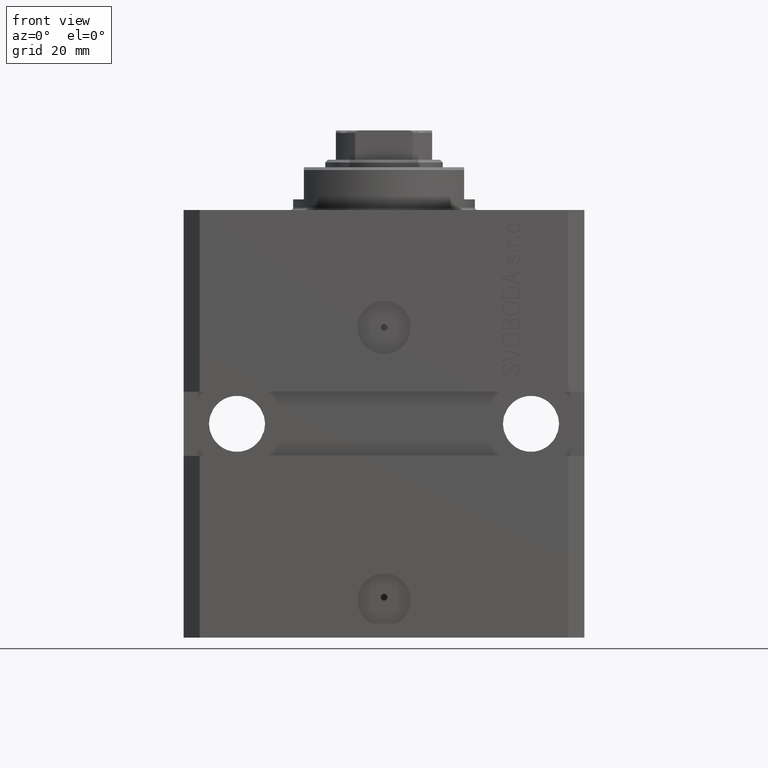
[diagram: clean part render]
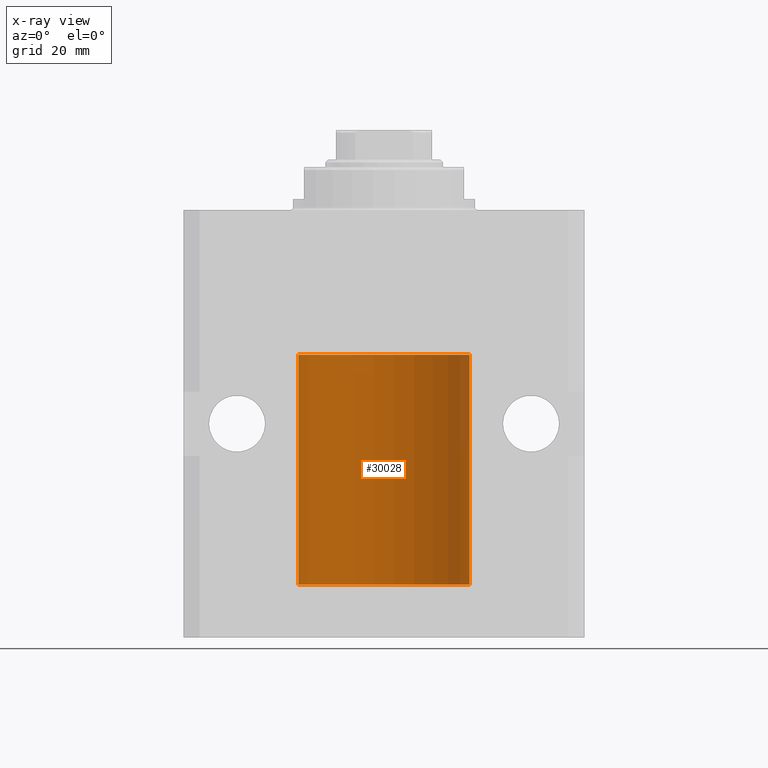
[diagram: x-ray — body ghosted, one internal face saturated and labeled with its STEP entity id]
A machine part, front view, then the same camera in x-ray: the body is ghosted and one INTERNAL B-rep face — a face not visible from any outside direction — is saturated and labeled: STEP entity #30028.
In plain terms, the highlighted cylindrical surface (partial cylindrical patch) has radius 16 mm, axis along (0, 0, 1).
Its self-contained STEP definition (entity closure, byte-faithful):
#389 = CARTESIAN_POINT ( 'NONE',  ( 0.000000000000000000, 0.000000000000000000, -70.09999999999999432 ) ) ;
#1057 = LINE ( 'NONE', #7438, #21315 ) ;
#3191 = DIRECTION ( 'NONE',  ( -0.000000000000000000, -0.000000000000000000, 1.000000000000000000 ) ) ;
#4310 = VERTEX_POINT ( 'NONE', #15127 ) ;
#4674 = ORIENTED_EDGE ( 'NONE', *, *, #9559, .T. ) ;
#7143 = AXIS2_PLACEMENT_3D ( 'NONE', #389, #15053, #43926 ) ;
#7438 = CARTESIAN_POINT ( 'NONE',  ( -16.00000000000000000, 1.959434878635765131E-15, -70.09999999999999432 ) ) ;
#7531 = CARTESIAN_POINT ( 'NONE',  ( -15.99070426498502862, 0.5462220647145645813, -68.31460064614141459 ) ) ;
#9437 = VERTEX_POINT ( 'NONE', #10918 ) ;
#9559 = EDGE_CURVE ( 'NONE', #4310, #31137, #42383, .T. ) ;
#10155 = CARTESIAN_POINT ( 'NONE',  ( -15.99548640841682712, 0.3843705577988820732, -67.50046628527007897 ) ) ;
#10385 = CARTESIAN_POINT ( 'NONE',  ( -15.98779057735153586, 0.6249419637998054888, -67.83670145863507628 ) ) ;
#10491 = ORIENTED_EDGE ( 'NONE', *, *, #39369, .F. ) ;
#10918 = CARTESIAN_POINT ( 'NONE',  ( -16.00000000000013145, 3.685127046438747128E-13, -68.62500000000343903 ) ) ;
#11458 = EDGE_CURVE ( 'NONE', #22991, #31137, #1057, .T. ) ;
#11921 = DIRECTION ( 'NONE',  ( -0.000000000000000000, -0.000000000000000000, 1.000000000000000000 ) ) ;
#12247 = DIRECTION ( 'NONE',  ( -0.000000000000000000, -0.000000000000000000, 1.000000000000000000 ) ) ;
#12690 = CARTESIAN_POINT ( 'NONE',  ( -16.00000000000000000, 1.959434878635765131E-15, -70.09999999999999432 ) ) ;
#13370 = CARTESIAN_POINT ( 'NONE',  ( 0.000000000000000000, 0.000000000000000000, -70.09999999999999432 ) ) ;
#13711 = CARTESIAN_POINT ( 'NONE',  ( -15.99707730059171240, 0.3150375992092334654, -67.45402333202571299 ) ) ;
#14074 = CYLINDRICAL_SURFACE ( 'NONE', #19610, 16.00000000000000000 ) ;
#14539 = ORIENTED_EDGE ( 'NONE', *, *, #19742, .T. ) ;
#15053 = DIRECTION ( 'NONE',  ( 0.000000000000000000, 0.000000000000000000, 1.000000000000000000 ) ) ;
#15127 = CARTESIAN_POINT ( 'NONE',  ( 16.00000000000000000, 0.000000000000000000, -27.10000000000000142 ) ) ;
#15561 = CARTESIAN_POINT ( 'NONE',  ( -16.00000000000000000, 1.959434878635765131E-15, -70.09999999999999432 ) ) ;
#17622 = DIRECTION ( 'NONE',  ( 1.000000000000000000, 0.000000000000000000, 0.000000000000000000 ) ) ;
#18194 = CARTESIAN_POINT ( 'NONE',  ( -15.99711699979840951, 0.3253759916140645525, -68.55856151623176231 ) ) ;
#19610 = AXIS2_PLACEMENT_3D ( 'NONE', #13370, #3191, #17622 ) ;
#19742 = EDGE_CURVE ( 'NONE', #22991, #9437, #27614, .T. ) ;
#20340 = EDGE_CURVE ( 'NONE', #31022, #35913, #43440, .T. ) ;
#20944 = ORIENTED_EDGE ( 'NONE', *, *, #20340, .F. ) ;
#21315 = VECTOR ( 'NONE', #11921, 1000.000000000000000 ) ;
#21609 = CARTESIAN_POINT ( 'NONE',  ( -16.00000000000000000, 1.959434878635765131E-15, -27.10000000000000142 ) ) ;
#22049 = VECTOR ( 'NONE', #12247, 1000.000000000000000 ) ;
#22991 = VERTEX_POINT ( 'NONE', #27138 ) ;
#23236 = VECTOR ( 'NONE', #45557, 1000.000000000000000 ) ;
#25307 = CARTESIAN_POINT ( 'NONE',  ( -15.99934216141748244, 0.1636497843296345067, -67.39126528029308361 ) ) ;
#26095 = EDGE_CURVE ( 'NONE', #31022, #4310, #27324, .T. ) ;
#26598 = EDGE_LOOP ( 'NONE', ( #10491, #20944, #42084, #4674, #28820, #14539 ) ) ;
#27138 = CARTESIAN_POINT ( 'NONE',  ( -16.00000000000000000, -9.346608026143465119E-15, -67.37500000000000000 ) ) ;
#27324 = LINE ( 'NONE', #34901, #23236 ) ;
#27614 = B_SPLINE_CURVE_WITH_KNOTS ( 'NONE', 3,
 ( #46164, #35971, #25307, #13711, #10155, #46627, #10385, #28164, #35504, #7531, #42586, #18194, #32651, #39049 ),
 .UNSPECIFIED., .F., .F.,
 ( 4, 2, 2, 2, 2, 2, 4 ),
 ( 9.902737362640428303E-19, 0.0002442776652680895785, 0.0004885553305361781812, 0.0009771106610723552782, 0.001221388326340464752, 0.001465665991608574008, 0.001954221322144763465 ),
 .UNSPECIFIED. ) ;
#28164 = CARTESIAN_POINT ( 'NONE',  ( -15.98778717651346426, 0.6250289588122136530, -68.08131585687053189 ) ) ;
#28820 = ORIENTED_EDGE ( 'NONE', *, *, #11458, .F. ) ;
#29550 = AXIS2_PLACEMENT_3D ( 'NONE', #36958, #44518, #37429 ) ;
#30028 = ADVANCED_FACE ( 'NONE', ( #35641 ), #14074, .F. ) ;
#31022 = VERTEX_POINT ( 'NONE', #41506 ) ;
#31137 = VERTEX_POINT ( 'NONE', #21609 ) ;
#32651 = CARTESIAN_POINT ( 'NONE',  ( -15.99999999999998934, 0.1631714642025807183, -68.62499999999984368 ) ) ;
#34901 = CARTESIAN_POINT ( 'NONE',  ( 16.00000000000000000, 0.000000000000000000, -70.09999999999999432 ) ) ;
#35504 = CARTESIAN_POINT ( 'NONE',  ( -15.98844267028591126, 0.6088369347963314970, -68.16324735024328163 ) ) ;
#35641 = FACE_OUTER_BOUND ( 'NONE', #26598, .T. ) ;
#35913 = VERTEX_POINT ( 'NONE', #12690 ) ;
#35971 = CARTESIAN_POINT ( 'NONE',  ( -16.00000000000000711, 0.08259886010189028405, -67.37500000000001421 ) ) ;
#36958 = CARTESIAN_POINT ( 'NONE',  ( 0.000000000000000000, 0.000000000000000000, -27.10000000000000142 ) ) ;
#37116 = LINE ( 'NONE', #15561, #22049 ) ;
#37429 = DIRECTION ( 'NONE',  ( 1.000000000000000000, 0.000000000000000000, 0.000000000000000000 ) ) ;
#39049 = CARTESIAN_POINT ( 'NONE',  ( -16.00000000000013145, 3.685127046438747128E-13, -68.62500000000343903 ) ) ;
#39369 = EDGE_CURVE ( 'NONE', #35913, #9437, #37116, .T. ) ;
#41506 = CARTESIAN_POINT ( 'NONE',  ( 16.00000000000000000, 0.000000000000000000, -70.09999999999999432 ) ) ;
#42084 = ORIENTED_EDGE ( 'NONE', *, *, #26095, .T. ) ;
#42383 = CIRCLE ( 'NONE', #29550, 16.00000000000000000 ) ;
#42586 = CARTESIAN_POINT ( 'NONE',  ( -15.99228023727723702, 0.5003781296993395911, -68.38347829554236057 ) ) ;
#43440 = CIRCLE ( 'NONE', #7143, 16.00000000000000000 ) ;
#43926 = DIRECTION ( 'NONE',  ( 1.000000000000000000, 0.000000000000000000, 0.000000000000000000 ) ) ;
#44518 = DIRECTION ( 'NONE',  ( 0.000000000000000000, 0.000000000000000000, 1.000000000000000000 ) ) ;
#45557 = DIRECTION ( 'NONE',  ( -0.000000000000000000, -0.000000000000000000, 1.000000000000000000 ) ) ;
#46164 = CARTESIAN_POINT ( 'NONE',  ( -16.00000000000000000, -9.346608026143465119E-15, -67.37500000000000000 ) ) ;
#46627 = CARTESIAN_POINT ( 'NONE',  ( -15.99070653155268040, 0.5573233280232966491, -67.67348148680505915 ) ) ;